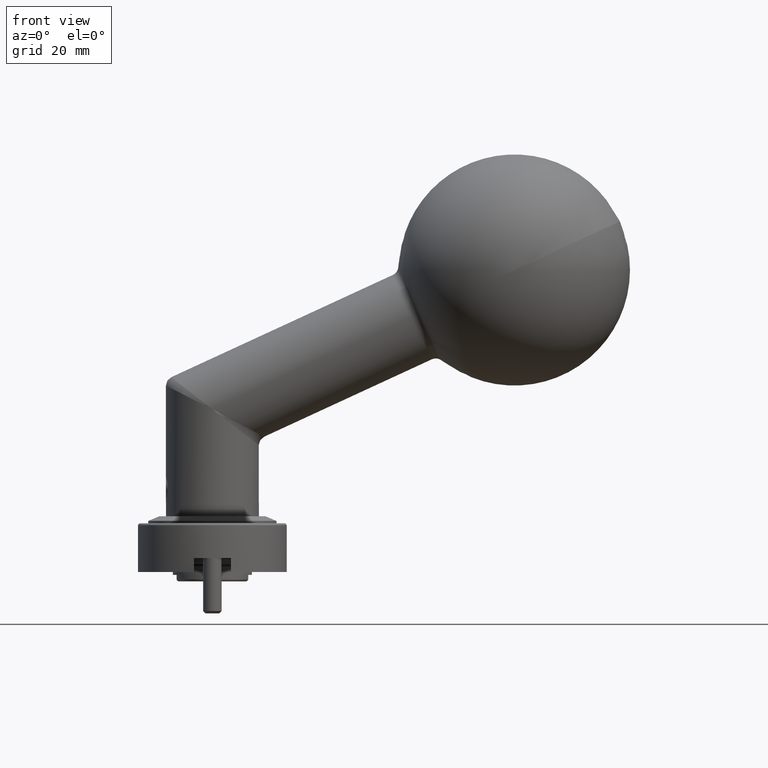
[diagram: clean part render]
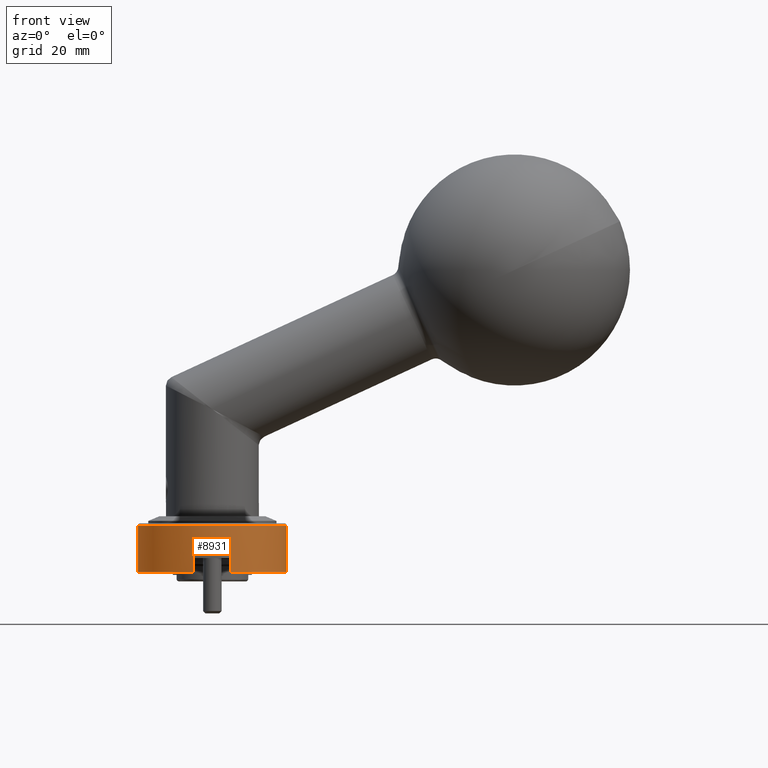
[diagram: same view with one face highlighted and labeled with its STEP entity id]
A machine part, front view. The second image highlights one B-rep face of the part: STEP entity #8931.
In plain terms, the highlighted cylindrical surface (partial cylindrical patch) has radius 16 mm, axis along (0, 0, 1).
Its self-contained STEP definition (entity closure, byte-faithful):
#1210 = CARTESIAN_POINT ( 'NONE',  ( -4.000000000000000000, -30.49193338482967200, -10.49999999999999500 ) ) ;
#1479 = CARTESIAN_POINT ( 'NONE',  ( -16.00000000000000700, -14.99999999999999100, -10.49999999999999500 ) ) ;
#1640 = ORIENTED_EDGE ( 'NONE', *, *, #13074, .F. ) ;
#1648 = DIRECTION ( 'NONE',  ( 0.0000000000000000000, 0.0000000000000000000, 1.000000000000000000 ) ) ;
#1740 = VERTEX_POINT ( 'NONE', #3527 ) ;
#2003 = AXIS2_PLACEMENT_3D ( 'NONE', #8119, #13296, #13214 ) ;
#2290 = DIRECTION ( 'NONE',  ( 1.000000000000000000, 0.0000000000000000000, 0.0000000000000000000 ) ) ;
#2937 = CIRCLE ( 'NONE', #2003, 16.00000000000001100 ) ;
#3527 = CARTESIAN_POINT ( 'NONE',  ( 4.000000000000000000, -30.49193338482967500, -10.49999999999999500 ) ) ;
#3728 = CARTESIAN_POINT ( 'NONE',  ( 4.000000000000000000, -30.49193338482967200, -10.49999999999999500 ) ) ;
#3954 = CARTESIAN_POINT ( 'NONE',  ( -2.563635327559616200E-015, -14.99999999999999300, -10.49999999999999500 ) ) ;
#4964 = VECTOR ( 'NONE', #16459, 1000.000000000000000 ) ;
#5251 = DIRECTION ( 'NONE',  ( 0.0000000000000000000, 0.0000000000000000000, 1.000000000000000000 ) ) ;
#5656 = CARTESIAN_POINT ( 'NONE',  ( -2.563635327559616200E-015, -14.99999999999999300, -5.499999999999991100 ) ) ;
#6508 = CARTESIAN_POINT ( 'NONE',  ( 4.000000000000000000, -30.49193338482967500, -5.499999999999991100 ) ) ;
#7019 = CIRCLE ( 'NONE', #7226, 16.00000000000001100 ) ;
#7037 = LINE ( 'NONE', #1210, #4964 ) ;
#7226 = AXIS2_PLACEMENT_3D ( 'NONE', #9441, #12849, #7615 ) ;
#7253 = AXIS2_PLACEMENT_3D ( 'NONE', #5656, #19010, #2290 ) ;
#7615 = DIRECTION ( 'NONE',  ( 1.000000000000000000, 0.0000000000000000000, 0.0000000000000000000 ) ) ;
#7715 = VECTOR ( 'NONE', #21439, 1000.000000000000000 ) ;
#8078 = VECTOR ( 'NONE', #1648, 1000.000000000000000 ) ;
#8119 = CARTESIAN_POINT ( 'NONE',  ( -2.563635327559616200E-015, -14.99999999999999300, -0.5000000000000004400 ) ) ;
#8485 = EDGE_CURVE ( 'NONE', #12026, #16772, #20417, .T. ) ;
#8775 = DIRECTION ( 'NONE',  ( 0.0000000000000000000, 0.0000000000000000000, 1.000000000000000000 ) ) ;
#8931 = ADVANCED_FACE ( 'NONE', ( #13173 ), #20545, .T. ) ;
#9276 = ORIENTED_EDGE ( 'NONE', *, *, #18755, .F. ) ;
#9278 = EDGE_CURVE ( 'NONE', #13734, #16772, #2937, .T. ) ;
#9441 = CARTESIAN_POINT ( 'NONE',  ( -2.563635327559616200E-015, -14.99999999999999300, -10.49999999999999500 ) ) ;
#9646 = AXIS2_PLACEMENT_3D ( 'NONE', #15343, #5251, #20429 ) ;
#9865 = LINE ( 'NONE', #3728, #15149 ) ;
#10006 = CARTESIAN_POINT ( 'NONE',  ( 16.00000000000000700, -14.99999999999999300, -10.49999999999999500 ) ) ;
#10317 = VERTEX_POINT ( 'NONE', #6508 ) ;
#10566 = VERTEX_POINT ( 'NONE', #18660 ) ;
#11163 = ORIENTED_EDGE ( 'NONE', *, *, #9278, .T. ) ;
#12026 = VERTEX_POINT ( 'NONE', #1479 ) ;
#12245 = CARTESIAN_POINT ( 'NONE',  ( -16.00000000000000700, -14.99999999999999100, -0.5000000000000004400 ) ) ;
#12429 = EDGE_LOOP ( 'NONE', ( #18752, #21134, #20895, #11163, #16565, #15424, #1640, #9276 ) ) ;
#12849 = DIRECTION ( 'NONE',  ( 0.0000000000000000000, 0.0000000000000000000, 1.000000000000000000 ) ) ;
#13074 = EDGE_CURVE ( 'NONE', #10566, #19329, #7037, .T. ) ;
#13159 = CARTESIAN_POINT ( 'NONE',  ( 16.00000000000000700, -14.99999999999999300, -0.5000000000000004400 ) ) ;
#13173 = FACE_OUTER_BOUND ( 'NONE', #12429, .T. ) ;
#13214 = DIRECTION ( 'NONE',  ( 1.000000000000000000, 0.0000000000000000000, 0.0000000000000000000 ) ) ;
#13266 = EDGE_CURVE ( 'NONE', #20410, #13734, #19967, .T. ) ;
#13296 = DIRECTION ( 'NONE',  ( -0.0000000000000000000, -0.0000000000000000000, -1.000000000000000000 ) ) ;
#13612 = EDGE_CURVE ( 'NONE', #12026, #19329, #7019, .T. ) ;
#13734 = VERTEX_POINT ( 'NONE', #13159 ) ;
#14663 = CARTESIAN_POINT ( 'NONE',  ( -16.00000000000000700, -14.99999999999999100, -10.49999999999999500 ) ) ;
#15119 = CARTESIAN_POINT ( 'NONE',  ( 16.00000000000000700, -14.99999999999999300, -10.49999999999999500 ) ) ;
#15149 = VECTOR ( 'NONE', #15484, 1000.000000000000000 ) ;
#15343 = CARTESIAN_POINT ( 'NONE',  ( -2.563635327559616200E-015, -14.99999999999999300, -10.49999999999999500 ) ) ;
#15424 = ORIENTED_EDGE ( 'NONE', *, *, #13612, .T. ) ;
#15437 = CIRCLE ( 'NONE', #9646, 16.00000000000001100 ) ;
#15484 = DIRECTION ( 'NONE',  ( 0.0000000000000000000, 0.0000000000000000000, 1.000000000000000000 ) ) ;
#15588 = CARTESIAN_POINT ( 'NONE',  ( -4.000000000000000000, -30.49193338482967500, -10.49999999999999500 ) ) ;
#16097 = AXIS2_PLACEMENT_3D ( 'NONE', #3954, #8775, #17207 ) ;
#16459 = DIRECTION ( 'NONE',  ( -0.0000000000000000000, -0.0000000000000000000, -1.000000000000000000 ) ) ;
#16565 = ORIENTED_EDGE ( 'NONE', *, *, #8485, .F. ) ;
#16772 = VERTEX_POINT ( 'NONE', #12245 ) ;
#17207 = DIRECTION ( 'NONE',  ( 1.000000000000000000, 0.0000000000000000000, 0.0000000000000000000 ) ) ;
#17282 = EDGE_CURVE ( 'NONE', #1740, #20410, #15437, .T. ) ;
#18034 = CIRCLE ( 'NONE', #7253, 16.00000000000001100 ) ;
#18660 = CARTESIAN_POINT ( 'NONE',  ( -4.000000000000000000, -30.49193338482967500, -5.499999999999991100 ) ) ;
#18752 = ORIENTED_EDGE ( 'NONE', *, *, #20672, .F. ) ;
#18755 = EDGE_CURVE ( 'NONE', #10317, #10566, #18034, .T. ) ;
#19010 = DIRECTION ( 'NONE',  ( -0.0000000000000000000, -0.0000000000000000000, -1.000000000000000000 ) ) ;
#19329 = VERTEX_POINT ( 'NONE', #15588 ) ;
#19967 = LINE ( 'NONE', #15119, #8078 ) ;
#20410 = VERTEX_POINT ( 'NONE', #10006 ) ;
#20417 = LINE ( 'NONE', #14663, #7715 ) ;
#20429 = DIRECTION ( 'NONE',  ( 1.000000000000000000, 0.0000000000000000000, 0.0000000000000000000 ) ) ;
#20545 = CYLINDRICAL_SURFACE ( 'NONE', #16097, 16.00000000000001100 ) ;
#20672 = EDGE_CURVE ( 'NONE', #1740, #10317, #9865, .T. ) ;
#20895 = ORIENTED_EDGE ( 'NONE', *, *, #13266, .T. ) ;
#21134 = ORIENTED_EDGE ( 'NONE', *, *, #17282, .T. ) ;
#21439 = DIRECTION ( 'NONE',  ( 0.0000000000000000000, 0.0000000000000000000, 1.000000000000000000 ) ) ;